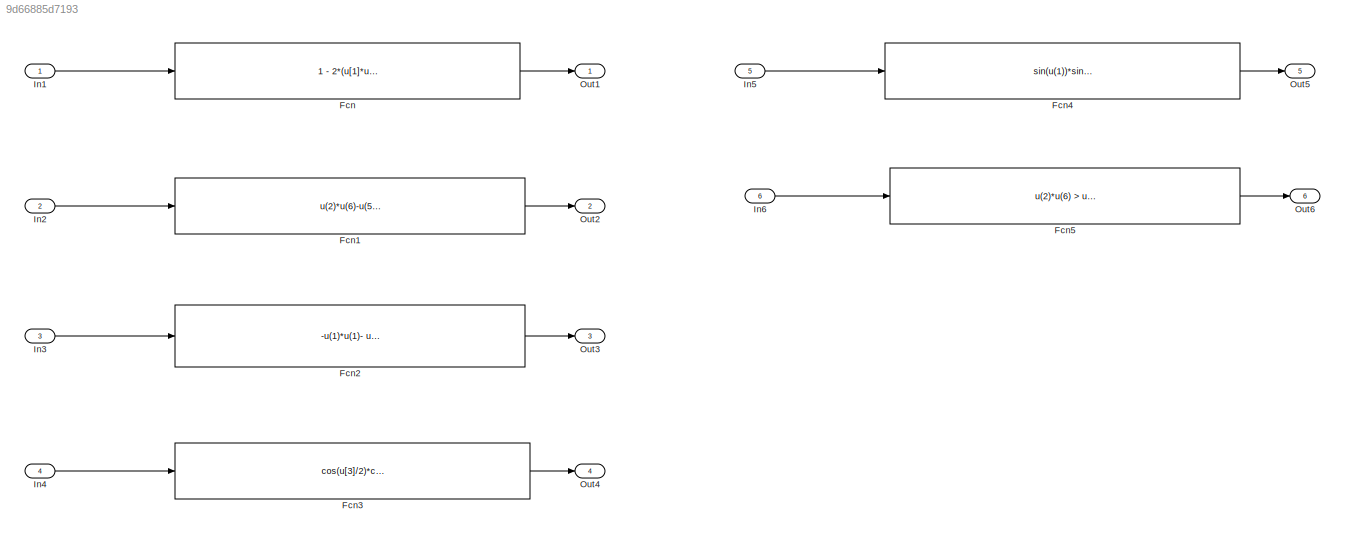
MODEL slx_9d66885d7193
KIND model
CONFIG AbsTol = auto
CONFIG EnableMultiTasking = on
CONFIG FixedStep = 0.200000
CONFIG MaxStep = auto
CONFIG MinStep = auto
CONFIG RelTol = 1e-3
CONFIG SampleTimeConstraint = Unconstrained
CONFIG Solver = FixedStepDiscrete
CONFIG SolverName = FixedStepDiscrete
CONFIG StartTime = 0.0
CONFIG StopTime = 10
BLOCK [Fcn] Fcn
  Expr = 1 - 2*(u[1]*u[4]+u[2]*u[3])
BLOCK [Fcn] Fcn1
  Expr = u(2)*u(6)-u(5)*u(3)
BLOCK [Fcn] Fcn2
  Expr = -u(1)*u(1)- u(2)*u(2) - u(3)*u(3) + u(4)*u(4)
BLOCK [Fcn] Fcn3
  Expr = cos(u[3]/2)*cos(u[2]/2)*sin(u[1]/2) - sin(u[3]/2)*sin(u[2]/2)*cos(u[1]/2)
BLOCK [Fcn] Fcn4
  Expr = sin(u(1))*sin(u(2))*cos(u(3)) - cos(u(1))*sin(u(3))
BLOCK [Fcn] Fcn5
  Expr = u(2)*u(6) > u(5)*u(3)
BLOCK [Inport] In1
  IconDisplay = Port number
  PortDimensions = 4
BLOCK [Inport] In2
  IconDisplay = Port number
  Port = 2
  PortDimensions = 6
BLOCK [Inport] In3
  IconDisplay = Port number
  Port = 3
  PortDimensions = 4
BLOCK [Inport] In4
  IconDisplay = Port number
  Port = 4
  PortDimensions = 3
BLOCK [Inport] In5
  IconDisplay = Port number
  Port = 5
  PortDimensions = 3
BLOCK [Inport] In6
  IconDisplay = Port number
  Port = 6
  PortDimensions = 6
BLOCK [Outport] Out1
  IconDisplay = Port number
BLOCK [Outport] Out2
  IconDisplay = Port number
  Port = 2
BLOCK [Outport] Out3
  IconDisplay = Port number
  Port = 3
BLOCK [Outport] Out4
  IconDisplay = Port number
  Port = 4
BLOCK [Outport] Out5
  IconDisplay = Port number
  Port = 5
BLOCK [Outport] Out6
  IconDisplay = Port number
  Port = 6
LINE Fcn1:1 -> Out2:1
LINE Fcn2:1 -> Out3:1
LINE Fcn3:1 -> Out4:1
LINE Fcn4:1 -> Out5:1
LINE Fcn5:1 -> Out6:1
LINE Fcn:1 -> Out1:1
LINE In1:1 -> Fcn:1
LINE In2:1 -> Fcn1:1
LINE In3:1 -> Fcn2:1
LINE In4:1 -> Fcn3:1
LINE In5:1 -> Fcn4:1
LINE In6:1 -> Fcn5:1
